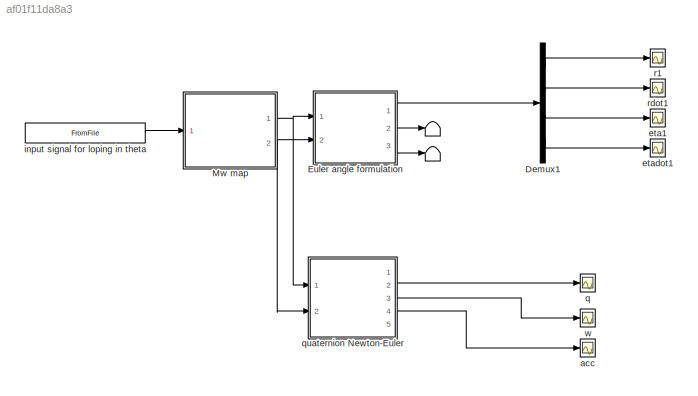
MODEL slx_af01f11da8a3
KIND model
CONFIG AbsTol = auto
CONFIG FixedStep = auto
CONFIG MaxStep = auto
CONFIG MinStep = auto
CONFIG RelTol = 1e-3
CONFIG SampleTimeConstraint = Unconstrained
CONFIG Solver = VariableStepAuto
CONFIG SolverMode = Auto
CONFIG SolverName = VariableStepAuto
CONFIG StartTime = 0.0
CONFIG StopTime = 15
BLOCK [Terminator]  
BLOCK [Terminator]   
BLOCK [Demux] Demux1
  DisplayOption = bar
  Outputs = [3,3,3,3]
  Ports = [1, 4]
BLOCK [ModelReference] Euler angle formulation
  ModelNameDialog = quadcopter_model_c_Euler.mdl
  ModelReferenceVersion = 1.167
  Ports = [2, 3]
  Variant = off
BLOCK [ModelReference] Mw map
  ModelNameDialog = omega2thrust.mdl
  ModelReferenceVersion = 1.3
  Ports = [1, 2]
  Variant = off
BLOCK [Scope] acc
  Ports = [1]
  ScopeSpecificationString = Simulink.scopes.TimeScopeBlockCfg('CurrentConfiguration', extmgr.ConfigurationSet(extmgr.Configuration('Core','General UI',true),extmgr.Configuration('Core','Source UI',true),extmgr.Configuration('Sources','WiredSimulink',true,'DataLoggingVariableName','ScopeData5'),extmgr.Configuration('Visuals','Time Domain',true,'SerializedDisplays',{struct('MinYLimReal','-14.56716','MaxYLimReal','3.03374','YLa...<+1450ch>
BLOCK [Scope] eta1
  Ports = [1]
  ScopeSpecificationString = Simulink.scopes.TimeScopeBlockCfg('CurrentConfiguration', extmgr.ConfigurationSet(extmgr.Configuration('Core','General UI',true),extmgr.Configuration('Core','Source UI',true),extmgr.Configuration('Sources','WiredSimulink',true,'DataLoggingVariableName','ScopeData1'),extmgr.Configuration('Visuals','Time Domain',true,'SerializedDisplays',{struct('MinYLimReal','-0.44782','MaxYLimReal','4.03041','YLab...<+1395ch>
BLOCK [Scope] etadot1
  Ports = [1]
  ScopeSpecificationString = Simulink.scopes.TimeScopeBlockCfg('CurrentConfiguration', extmgr.ConfigurationSet(extmgr.Configuration('Core','General UI',true),extmgr.Configuration('Core','Source UI',true),extmgr.Configuration('Sources','WiredSimulink',true,'DataLoggingVariableName','ScopeData2'),extmgr.Configuration('Visuals','Time Domain',true,'SerializedDisplays',{struct('MinYLimReal','-0.32873','MaxYLimReal','2.95849','YLab...<+1395ch>
BLOCK [FromFile] input signal for loping in theta
  ExtrapolationBeforeFirstDataPoint = Hold first value
  FileName = omega_agressive
BLOCK [Scope] q
  Ports = [1]
  ScopeSpecificationString = Simulink.scopes.TimeScopeBlockCfg('CurrentConfiguration', extmgr.ConfigurationSet(extmgr.Configuration('Core','General UI',true),extmgr.Configuration('Core','Source UI',true),extmgr.Configuration('Sources','WiredSimulink',true,'DataLoggingVariableName','ScopeData7'),extmgr.Configuration('Visuals','Time Domain',true,'SerializedDisplays',{struct('MinYLimReal','-0.125','MaxYLimReal','1.125','YLabelRe...<+1464ch>
BLOCK [ModelReference] quaternion Newton-Euler
  ModelNameDialog = quadcopter_model_c_NewtonEuler.mdl
  ModelReferenceVersion = 1.325
  Ports = [2, 5]
  Variant = off
BLOCK [Scope] r1
  Ports = [1]
  ScopeSpecificationString = Simulink.scopes.TimeScopeBlockCfg('CurrentConfiguration', extmgr.ConfigurationSet(extmgr.Configuration('Core','General UI',true),extmgr.Configuration('Core','Source UI',true),extmgr.Configuration('Sources','WiredSimulink',true,'DataLoggingVariableName','ScopeData3'),extmgr.Configuration('Visuals','Time Domain',true,'SerializedDisplays',{struct('MinYLimReal','-1218.70033','MaxYLimReal','152.70565',...<+1415ch>
BLOCK [Scope] rdot1
  Ports = [1]
  ScopeSpecificationString = Simulink.scopes.TimeScopeBlockCfg('CurrentConfiguration', extmgr.ConfigurationSet(extmgr.Configuration('Core','General UI',true),extmgr.Configuration('Core','Source UI',true),extmgr.Configuration('Sources','WiredSimulink',true,'DataLoggingVariableName','ScopeData4'),extmgr.Configuration('Visuals','Time Domain',true,'SerializedDisplays',{struct('MinYLimReal','-172.15096','MaxYLimReal','21.35067','Y...<+1407ch>
BLOCK [Scope] w
  Ports = [1]
  ScopeSpecificationString = Simulink.scopes.TimeScopeBlockCfg('CurrentConfiguration', extmgr.ConfigurationSet(extmgr.Configuration('Core','General UI',true),extmgr.Configuration('Core','Source UI',true),extmgr.Configuration('Sources','WiredSimulink',true,'DataLoggingVariableName','ScopeData1'),extmgr.Configuration('Visuals','Time Domain',true,'SerializedDisplays',{struct('MinYLimReal','-0.41681','MaxYLimReal','2.88876','YLab...<+1446ch>
LINE Demux1:1 -> r1:1
LINE Demux1:2 -> rdot1:1
LINE Demux1:3 -> eta1:1
LINE Demux1:4 -> etadot1:1
LINE Euler angle formulation:1 -> Demux1:1
LINE Euler angle formulation:2 ->  :1
LINE Euler angle formulation:3 ->   :1
NET Mw map:1 -> Euler angle formulation:1, quaternion Newton-Euler:1
NET Mw map:2 -> Euler angle formulation:2, quaternion Newton-Euler:2
LINE input signal for loping in theta:1 -> Mw map:1
LINE quaternion Newton-Euler:2 -> q:1
LINE quaternion Newton-Euler:3 -> w:1
LINE quaternion Newton-Euler:4 -> acc:1
note: NET lines group one-source signal fan-out (src -> all destinations, sorted); 1:1 wires keep LINE
